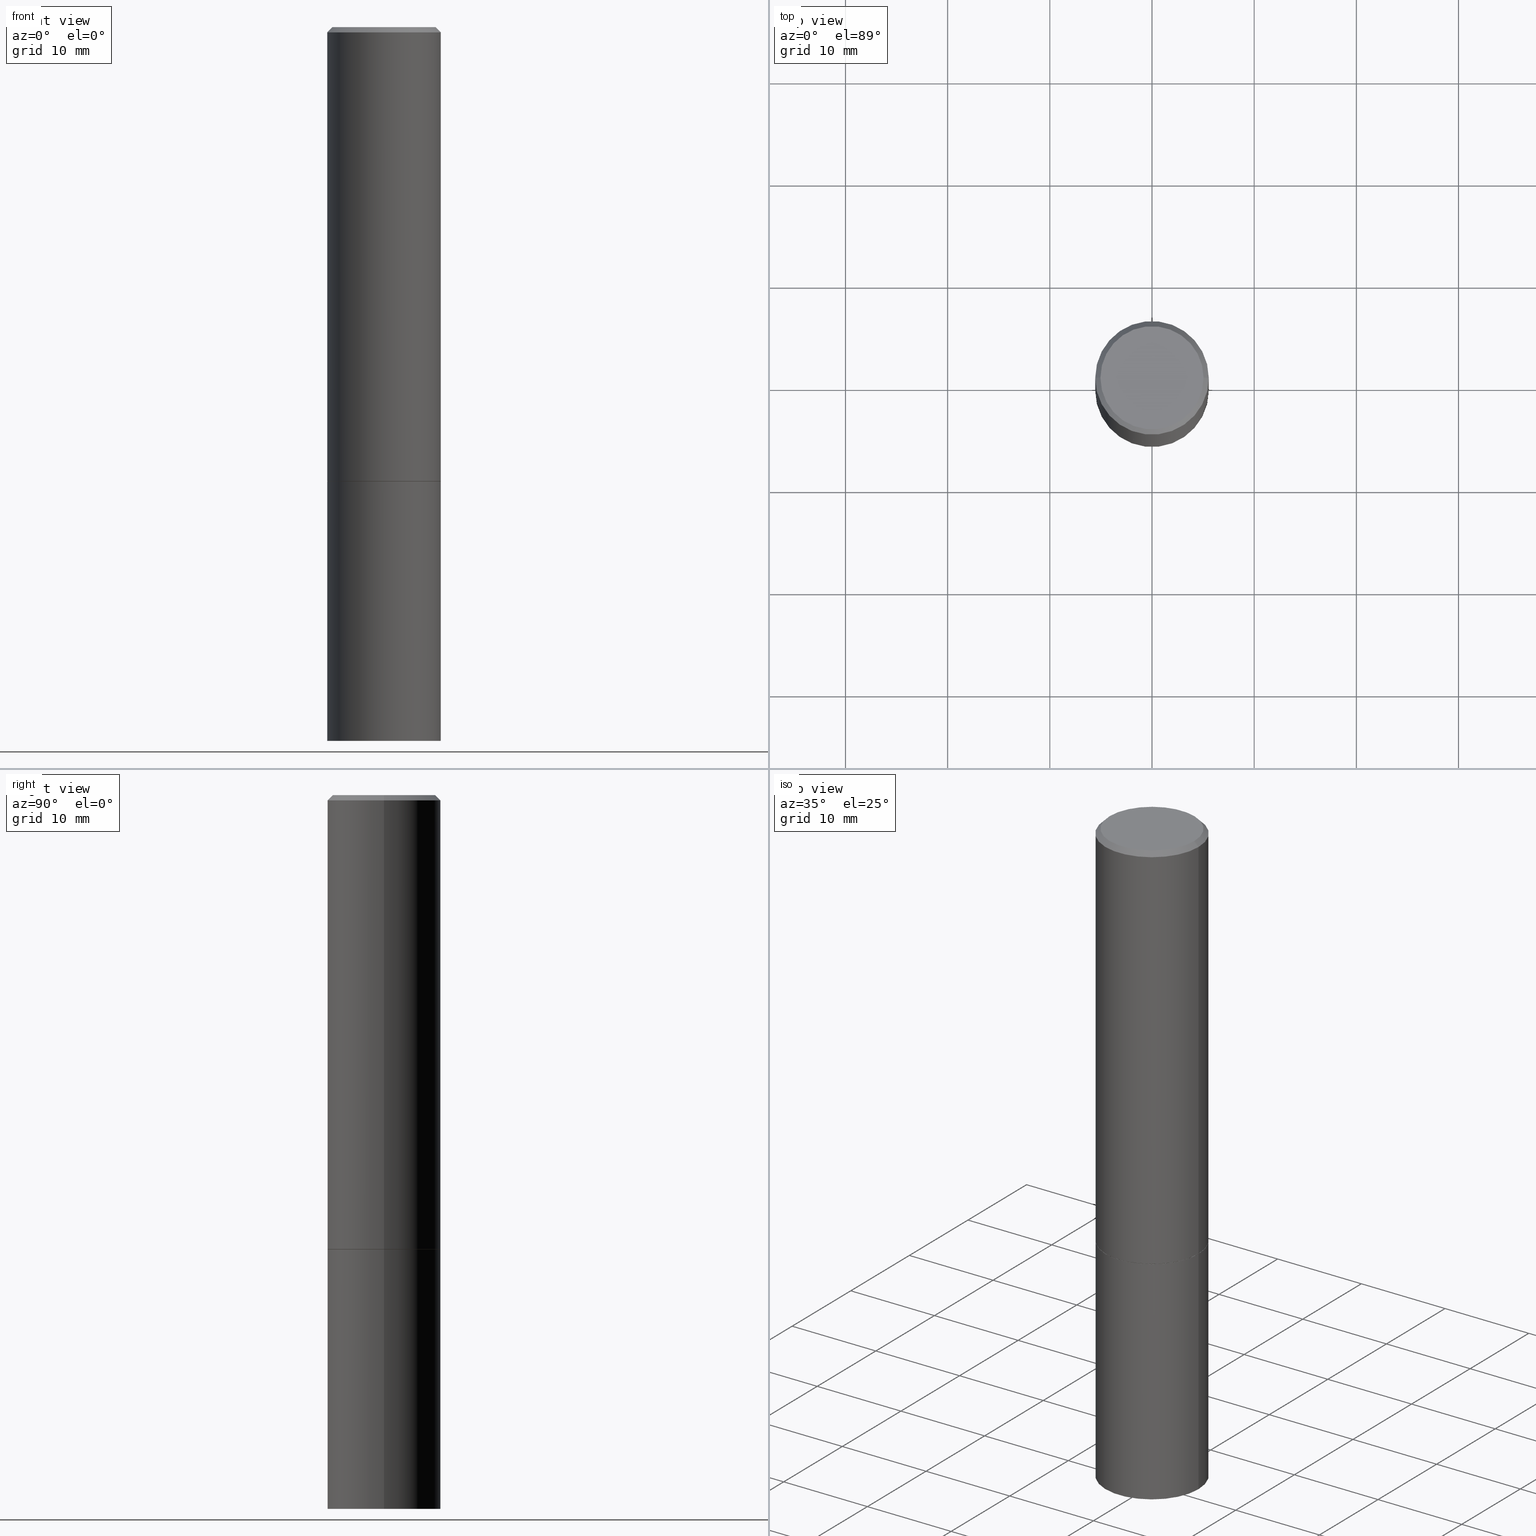
[diagram: canonical four-view strip — front | top / right | iso, engineering-drawing reading convention]
A machine part, canonical four-view strip (front | top / right | iso — engineering-drawing reading convention). The complete STEP part file that produces these views, byte-faithful:
ISO-10303-21;
HEADER;
FILE_DESCRIPTION (( 'STEP AP203' ),
    '1' );
FILE_NAME ('39755.STEP',
    '2024-02-28T01:14:26',
    ( '' ),
    ( '' ),
    'SwSTEP 2.0',
    'SolidWorks 2023',
    '' );
FILE_SCHEMA (( 'CONFIG_CONTROL_DESIGN' ));
ENDSEC;

DATA;
#1 = APPROVAL_ROLE ( '' ) ;
#2 = ORIENTED_EDGE ( 'NONE', *, *, #106, .T. ) ;
#3 = CC_DESIGN_PERSON_AND_ORGANIZATION_ASSIGNMENT ( #241, #213, ( #44 ) ) ;
#4 = AXIS2_PLACEMENT_3D ( 'NONE', #212, #124, #207 ) ;
#5 = CARTESIAN_POINT ( 'NONE',  ( 0.000000000000000000, 0.000000000000000000, 0.000000000000000000 ) ) ;
#6 = DIRECTION ( 'NONE',  ( -2.445468806185136877E-29, 3.491481338843145188E-15, 1.000000000000000000 ) ) ;
#7 = FACE_OUTER_BOUND ( 'NONE', #19, .T. ) ;
#8 = PERSON_AND_ORGANIZATION ( #190, #270 ) ;
#9 = DIRECTION ( 'NONE',  ( -1.000000000000000000, 6.982962677686265922E-15, -4.876176775795935793E-29 ) ) ;
#10 = CC_DESIGN_SECURITY_CLASSIFICATION ( #336, ( #103 ) ) ;
#11 = CC_DESIGN_PERSON_AND_ORGANIZATION_ASSIGNMENT ( #290, #144, ( #336 ) ) ;
#12 = COORDINATED_UNIVERSAL_TIME_OFFSET ( 5, 0, .BEHIND. ) ;
#13 = FACE_OUTER_BOUND ( 'NONE', #80, .T. ) ;
#14 = DIRECTION ( 'NONE',  ( 1.000000000000000000, -6.982962677686266711E-15, 4.876176775795935232E-29 ) ) ;
#15 = ADVANCED_FACE ( 'NONE', ( #7 ), #302, .T. ) ;
#16 = CIRCLE ( 'NONE', #223, 0.2177499999999999991 ) ;
#17 = CARTESIAN_POINT ( 'NONE',  ( 1.527523085743937699E-15, 0.2187499999999903966, -2.750000000000000444 ) ) ;
#18 = CARTESIAN_POINT ( 'NONE',  ( 0.1987499999999997602, -1.467043770423236875E-15, 9.982525199991772484E-30 ) ) ;
#19 = EDGE_LOOP ( 'NONE', ( #311, #169, #197, #161 ) ) ;
#20 = PRODUCT_RELATED_PRODUCT_CATEGORY ( 'detail', '', ( #267 ) ) ;
#21 = VECTOR ( 'NONE', #6, 39.37007874015748143 ) ;
#22 = ORIENTED_EDGE ( 'NONE', *, *, #170, .T. ) ;
#23 = CARTESIAN_POINT ( 'NONE',  ( 0.2177499999999999991, -7.630632466041689500E-15, -1.750000000000000222 ) ) ;
#24 = ORIENTED_EDGE ( 'NONE', *, *, #189, .F. ) ;
#25 = EDGE_CURVE ( 'NONE', #313, #309, #182, .T. ) ;
#26 = MANIFOLD_SOLID_BREP ( 'Body-Move/Copy2[1]', #331 ) ;
#27 = PLANE ( 'NONE',  #109 ) ;
#28 = ORIENTED_EDGE ( 'NONE', *, *, #158, .T. ) ;
#29 = ORIENTED_EDGE ( 'NONE', *, *, #158, .F. ) ;
#30 = AXIS2_PLACEMENT_3D ( 'NONE', #41, #250, #339 ) ;
#31 = CC_DESIGN_APPROVAL ( #278, ( #103 ) ) ;
#32 = DIRECTION ( 'NONE',  ( -1.000000000000000000, 6.982962677686266711E-15, 0.000000000000000000 ) ) ;
#33 = DATE_AND_TIME ( #66, #133 ) ;
#34 = DIRECTION ( 'NONE',  ( 1.000000000000000000, -6.982962677686267499E-15, 0.000000000000000000 ) ) ;
#35 = PRODUCT_DEFINITION_SHAPE ( 'NONE', 'NONE',  #44 ) ;
#36 = DIRECTION ( 'NONE',  ( 1.000000000000000000, -6.982962677686266711E-15, 4.876176775795935793E-29 ) ) ;
#37 = AXIS2_PLACEMENT_3D ( 'NONE', #272, #147, #34 ) ;
#38 = AXIS2_PLACEMENT_3D ( 'NONE', #61, #97, #236 ) ;
#39 = CYLINDRICAL_SURFACE ( 'NONE', #86, 0.2187499999999998890 ) ;
#40 = EDGE_CURVE ( 'NONE', #114, #313, #263, .T. ) ;
#41 = CARTESIAN_POINT ( 'NONE',  ( 1.527523085743913244E-15, 0.2187499999999938660, -1.750000000000000666 ) ) ;
#42 = DIRECTION ( 'NONE',  ( 0.7071067811865465735, -7.319954787623252890E-15, -0.7071067811865484609 ) ) ;
#43 = VECTOR ( 'NONE', #333, 39.37007874015748143 ) ;
#44 = PRODUCT_DEFINITION ( 'UNKNOWN', '', #103, #177 ) ;
#45 = CIRCLE ( 'NONE', #193, 0.2187500000000000000 ) ;
#46 = APPROVAL_PERSON_ORGANIZATION ( #268, #247, #1 ) ;
#47 = LINE ( 'NONE', #357, #209 ) ;
#48 = ORIENTED_EDGE ( 'NONE', *, *, #305, .F. ) ;
#49 = CARTESIAN_POINT ( 'NONE',  ( 0.2187500000000000000, -7.637615428719375514E-15, -1.750000000000000000 ) ) ;
#50 = EDGE_CURVE ( 'NONE', #281, #260, #159, .T. ) ;
#51 = ORIENTED_EDGE ( 'NONE', *, *, #134, .T. ) ;
#52 = FACE_OUTER_BOUND ( 'NONE', #366, .T. ) ;
#53 = ORIENTED_EDGE ( 'NONE', *, *, #314, .F. ) ;
#54 = DIRECTION ( 'NONE',  ( -2.445468806185136597E-29, 3.491481338843145583E-15, 1.000000000000000000 ) ) ;
#55 = AXIS2_PLACEMENT_3D ( 'NONE', #71, #266, #9 ) ;
#56 = VERTEX_POINT ( 'NONE', #325 ) ;
#57 =( GEOMETRIC_REPRESENTATION_CONTEXT ( 3 ) GLOBAL_UNCERTAINTY_ASSIGNED_CONTEXT ( ( #237 ) ) GLOBAL_UNIT_ASSIGNED_CONTEXT ( ( #160, #83, #348 ) ) REPRESENTATION_CONTEXT ( 'NONE', 'WORKASPACE' ) );
#58 = CC_DESIGN_DATE_AND_TIME_ASSIGNMENT ( #326, #178, ( #336 ) ) ;
#59 = CARTESIAN_POINT ( 'NONE',  ( 0.000000000000000000, 0.000000000000000000, 0.000000000000000000 ) ) ;
#60 = VERTEX_POINT ( 'NONE', #99 ) ;
#61 = CARTESIAN_POINT ( 'NONE',  ( 0.000000000000000000, 0.000000000000000000, 0.000000000000000000 ) ) ;
#62 = PERSON_AND_ORGANIZATION ( #190, #270 ) ;
#63 = FACE_OUTER_BOUND ( 'NONE', #222, .T. ) ;
#64 = AXIS2_PLACEMENT_3D ( 'NONE', #95, #327, #154 ) ;
#65 = LOCAL_TIME ( 20, 14, 26.00000000000000000, #98 ) ;
#66 = CALENDAR_DATE ( 2024, 27, 2 ) ;
#67 = CARTESIAN_POINT ( 'NONE',  ( 0.000000000000000000, 0.000000000000000000, 0.000000000000000000 ) ) ;
#68 = ADVANCED_FACE ( 'NONE', ( #175 ), #39, .T. ) ;
#69 = DIRECTION ( 'NONE',  ( -2.445468806185136597E-29, 3.491481338843145583E-15, 1.000000000000000000 ) ) ;
#70 = PERSON_AND_ORGANIZATION ( #190, #270 ) ;
#71 = CARTESIAN_POINT ( 'NONE',  ( 1.387863832190143655E-15, 0.1987499999999997602, -6.939319160950743912E-16 ) ) ;
#72 = LOCAL_TIME ( 20, 14, 26.00000000000000000, #12 ) ;
#73 = ADVANCED_FACE ( 'NONE', ( #210 ), #346, .T. ) ;
#74 = DIRECTION ( 'NONE',  ( 1.000000000000000000, -6.982962677686266711E-15, 0.000000000000000000 ) ) ;
#75 = CC_DESIGN_APPROVAL ( #297, ( #44 ) ) ;
#76 = ADVANCED_FACE ( 'NONE', ( #146 ), #230, .T. ) ;
#77 = DIRECTION ( 'NONE',  ( 0.7071067811864267805, -2.468850131080992517E-15, 0.7071067811866682540 ) ) ;
#78 = CC_DESIGN_PERSON_AND_ORGANIZATION_ASSIGNMENT ( #62, #173, ( #103 ) ) ;
#79 = AXIS2_PLACEMENT_3D ( 'NONE', #59, #251, #166 ) ;
#80 = EDGE_LOOP ( 'NONE', ( #285, #51 ) ) ;
#81 = DIRECTION ( 'NONE',  ( -0.7071067811865465735, 2.468850131082246805E-15, -0.7071067811865484609 ) ) ;
#82 = ORIENTED_EDGE ( 'NONE', *, *, #40, .T. ) ;
#83 =( NAMED_UNIT ( * ) PLANE_ANGLE_UNIT ( ) SI_UNIT ( $, .RADIAN. ) );
#84 = ORIENTED_EDGE ( 'NONE', *, *, #180, .T. ) ;
#85 = CARTESIAN_POINT ( 'NONE',  ( -0.2177499999999999991, -4.562885535857887311E-15, -1.750000000000000222 ) ) ;
#86 = AXIS2_PLACEMENT_3D ( 'NONE', #67, #234, #36 ) ;
#87 = ORIENTED_EDGE ( 'NONE', *, *, #292, .T. ) ;
#88 = LOCAL_TIME ( 20, 14, 26.00000000000000000, #206 ) ;
#89 = SHAPE_DEFINITION_REPRESENTATION ( #35, #187 ) ;
#90 = CARTESIAN_POINT ( 'NONE',  ( -0.2187500000000000000, -1.533903009731541155E-15, -1.748999999999999888 ) ) ;
#91 = APPROVAL_ROLE ( '' ) ;
#92 = ORIENTED_EDGE ( 'NONE', *, *, #170, .F. ) ;
#93 = ADVANCED_FACE ( 'NONE', ( #63 ), #350, .T. ) ;
#94 = APPROVAL_DATE_TIME ( #33, #247 ) ;
#95 = CARTESIAN_POINT ( 'NONE',  ( 0.000000000000000000, 0.000000000000000000, 0.000000000000000000 ) ) ;
#96 = DATE_TIME_ROLE ( 'creation_date' ) ;
#97 = DIRECTION ( 'NONE',  ( -2.445468806185136597E-29, 3.491481338843145583E-15, 1.000000000000000000 ) ) ;
#98 = COORDINATED_UNIVERSAL_TIME_OFFSET ( 5, 0, .BEHIND. ) ;
#99 = CARTESIAN_POINT ( 'NONE',  ( -0.2177499999999999991, -4.557587081509664120E-15, -1.750000000000000222 ) ) ;
#100 = ADVANCED_FACE ( 'NONE', ( #291 ), #289, .T. ) ;
#101 = DIRECTION ( 'NONE',  ( -2.445468806185136597E-29, 3.491481338843145583E-15, 1.000000000000000000 ) ) ;
#102 = CIRCLE ( 'NONE', #152, 0.2187499999999997502 ) ;
#103 = PRODUCT_DEFINITION_FORMATION_WITH_SPECIFIED_SOURCE ( 'ANY', '', #267, .NOT_KNOWN. ) ;
#104 = DIRECTION ( 'NONE',  ( -2.445468806185136877E-29, 3.491481338843145188E-15, 1.000000000000000000 ) ) ;
#105 = DIRECTION ( 'NONE',  ( -2.445468806185136597E-29, 3.491481338843145583E-15, 1.000000000000000000 ) ) ;
#106 = EDGE_CURVE ( 'NONE', #309, #313, #298, .T. ) ;
#107 = PLANE ( 'NONE',  #131 ) ;
#108 = EDGE_LOOP ( 'NONE', ( #172, #84, #255, #48 ) ) ;
#109 = AXIS2_PLACEMENT_3D ( 'NONE', #17, #284, #224 ) ;
#110 = LOCAL_TIME ( 20, 14, 26.00000000000000000, #150 ) ;
#111 = FACE_OUTER_BOUND ( 'NONE', #342, .T. ) ;
#112 = ORIENTED_EDGE ( 'NONE', *, *, #292, .F. ) ;
#113 = CARTESIAN_POINT ( 'NONE',  ( -0.2187500000000000000, -6.301520777921857714E-15, -2.750000000000000000 ) ) ;
#114 = VERTEX_POINT ( 'NONE', #329 ) ;
#115 = FACE_OUTER_BOUND ( 'NONE', #135, .T. ) ;
#116 = ADVANCED_FACE ( 'NONE', ( #13 ), #149, .F. ) ;
#117 = ORIENTED_EDGE ( 'NONE', *, *, #305, .T. ) ;
#118 = COORDINATED_UNIVERSAL_TIME_OFFSET ( 5, 0, .BEHIND. ) ;
#119 = AXIS2_PLACEMENT_3D ( 'NONE', #130, #179, #243 ) ;
#120 = EDGE_LOOP ( 'NONE', ( #24, #22, #82, #256 ) ) ;
#121 = APPROVAL_STATUS ( 'not_yet_approved' ) ;
#122 = CARTESIAN_POINT ( 'NONE',  ( 0.2187500000000000000, -1.527523085743870843E-15, 1.066663669705360885E-29 ) ) ;
#123 = PERSON_AND_ORGANIZATION ( #190, #270 ) ;
#124 = DIRECTION ( 'NONE',  ( -2.445468806185136597E-29, 3.491481338843145583E-15, 1.000000000000000000 ) ) ;
#125 = DIRECTION ( 'NONE',  ( 1.000000000000000000, 0.000000000000000000, 0.000000000000000000 ) ) ;
#126 = CARTESIAN_POINT ( 'NONE',  ( -0.2187499999999998890, 1.554312234475218368E-15, -1.076017050993260062E-29 ) ) ;
#127 = CLOSED_SHELL ( 'NONE', ( #76, #244, #100, #253, #68, #15, #264, #116 ) ) ;
#128 = EDGE_CURVE ( 'NONE', #143, #364, #129, .T. ) ;
#129 = LINE ( 'NONE', #126, #215 ) ;
#130 = CARTESIAN_POINT ( 'NONE',  ( 6.725039217009124520E-29, -9.601573681818649859E-15, -2.750000000000000000 ) ) ;
#131 = AXIS2_PLACEMENT_3D ( 'NONE', #228, #306, #168 ) ;
#132 = CARTESIAN_POINT ( 'NONE',  ( 0.2177499999999999991, -7.630632466041689500E-15, -1.750000000000000222 ) ) ;
#133 = LOCAL_TIME ( 20, 14, 26.00000000000000000, #118 ) ;
#134 = EDGE_CURVE ( 'NONE', #260, #281, #269, .T. ) ;
#135 = EDGE_LOOP ( 'NONE', ( #29, #139 ) ) ;
#136 = CARTESIAN_POINT ( 'NONE',  ( -0.1987499999999997602, 1.422778645578575107E-15, -9.827974342635073886E-30 ) ) ;
#137 = ORIENTED_EDGE ( 'NONE', *, *, #356, .T. ) ;
#138 = CARTESIAN_POINT ( 'NONE',  ( 0.2187500000000000000, -7.634123947380530929E-15, -1.748999999999999888 ) ) ;
#139 = ORIENTED_EDGE ( 'NONE', *, *, #286, .F. ) ;
#140 = CARTESIAN_POINT ( 'NONE',  ( 4.890937612370284544E-31, -6.982962677686307633E-17, -0.02000000000000004552 ) ) ;
#141 = ORIENTED_EDGE ( 'NONE', *, *, #343, .F. ) ;
#142 = APPROVAL_ROLE ( '' ) ;
#143 = VERTEX_POINT ( 'NONE', #90 ) ;
#144 = PERSON_AND_ORGANIZATION_ROLE ( 'classification_officer' ) ;
#145 = APPROVAL_PERSON_ORGANIZATION ( #345, #278, #91 ) ;
#146 = FACE_OUTER_BOUND ( 'NONE', #164, .T. ) ;
#147 = DIRECTION ( 'NONE',  ( -2.445468806185136597E-29, 3.491481338843145583E-15, 1.000000000000000000 ) ) ;
#148 = APPROVAL_STATUS ( 'not_yet_approved' ) ;
#149 = PLANE ( 'NONE',  #55 ) ;
#150 = COORDINATED_UNIVERSAL_TIME_OFFSET ( 5, 0, .BEHIND. ) ;
#151 = DIRECTION ( 'NONE',  ( -2.445468806185136597E-29, 3.491481338843145583E-15, 1.000000000000000000 ) ) ;
#152 = AXIS2_PLACEMENT_3D ( 'NONE', #156, #355, #74 ) ;
#153 = EDGE_CURVE ( 'NONE', #114, #296, #157, .T. ) ;
#154 = DIRECTION ( 'NONE',  ( 1.000000000000000000, -6.982962677686266711E-15, 4.876176775795935232E-29 ) ) ;
#155 = CARTESIAN_POINT ( 'NONE',  ( 6.725039217009124520E-29, -9.601573681818649859E-15, -2.750000000000000000 ) ) ;
#156 = CARTESIAN_POINT ( 'NONE',  ( 4.890937612370284544E-31, -6.982962677686307633E-17, -0.02000000000000004552 ) ) ;
#157 = CIRCLE ( 'NONE', #119, 0.2187500000000000000 ) ;
#158 = EDGE_CURVE ( 'NONE', #167, #60, #352, .T. ) ;
#159 = CIRCLE ( 'NONE', #38, 0.1987499999999997602 ) ;
#160 =( CONVERSION_BASED_UNIT ( 'INCH', #365 ) LENGTH_UNIT ( ) NAMED_UNIT ( #246 ) );
#161 = ORIENTED_EDGE ( 'NONE', *, *, #320, .F. ) ;
#162 = APPLICATION_CONTEXT ( 'configuration controlled 3d designs of mechanical parts and assemblies' ) ;
#163 = FACE_OUTER_BOUND ( 'NONE', #195, .T. ) ;
#164 = EDGE_LOOP ( 'NONE', ( #28, #192, #229, #53 ) ) ;
#165 = AXIS2_PLACEMENT_3D ( 'NONE', #262, #344, #176 ) ;
#166 = DIRECTION ( 'NONE',  ( 1.000000000000000000, -6.982962677686266711E-15, 4.876176775795935793E-29 ) ) ;
#167 = VERTEX_POINT ( 'NONE', #132 ) ;
#168 = DIRECTION ( 'NONE',  ( 1.000000000000000000, -6.982962677686265922E-15, 4.876176775795935793E-29 ) ) ;
#169 = ORIENTED_EDGE ( 'NONE', *, *, #286, .T. ) ;
#170 = EDGE_CURVE ( 'NONE', #296, #114, #45, .T. ) ;
#171 = DATE_AND_TIME ( #321, #88 ) ;
#172 = ORIENTED_EDGE ( 'NONE', *, *, #134, .F. ) ;
#173 = PERSON_AND_ORGANIZATION_ROLE ( 'creator' ) ;
#174 = AXIS2_PLACEMENT_3D ( 'NONE', #363, #280, #358 ) ;
#175 = FACE_OUTER_BOUND ( 'NONE', #335, .T. ) ;
#176 = DIRECTION ( 'NONE',  ( 1.000000000000000000, -6.982962677686266711E-15, 0.000000000000000000 ) ) ;
#177 = DESIGN_CONTEXT ( 'detailed design', #274, 'design' ) ;
#178 = DATE_TIME_ROLE ( 'classification_date' ) ;
#179 = DIRECTION ( 'NONE',  ( -2.445468806185136597E-29, 3.491481338843145583E-15, 1.000000000000000000 ) ) ;
#180 = EDGE_CURVE ( 'NONE', #260, #56, #275, .T. ) ;
#181 = SECURITY_CLASSIFICATION_LEVEL ( 'unclassified' ) ;
#182 = CIRCLE ( 'NONE', #4, 0.2187500000000000000 ) ;
#183 = DIRECTION ( 'NONE',  ( -2.445468806185136877E-29, 3.491481338843145188E-15, 1.000000000000000000 ) ) ;
#184 = LINE ( 'NONE', #303, #261 ) ;
#185 = EDGE_CURVE ( 'NONE', #56, #364, #102, .T. ) ;
#186 = DIRECTION ( 'NONE',  ( 1.000000000000000000, -6.982962677686266711E-15, 0.000000000000000000 ) ) ;
#187 = ADVANCED_BREP_SHAPE_REPRESENTATION ( '39755', ( #26, #276, #231 ), #57 ) ;
#188 = CIRCLE ( 'NONE', #217, 0.2187500000000000000 ) ;
#189 = EDGE_CURVE ( 'NONE', #296, #309, #184, .T. ) ;
#190 = PERSON ( 'UNSPECIFIED', 'UNSPECIFIED', 'UNSPECIFIED', ('UNSPECIFIED'), ('UNSPECIFIED'), ('UNSPECIFIED') ) ;
#191 =( LENGTH_UNIT ( ) NAMED_UNIT ( * ) SI_UNIT ( $, .METRE. ) );
#192 = ORIENTED_EDGE ( 'NONE', *, *, #351, .T. ) ;
#193 = AXIS2_PLACEMENT_3D ( 'NONE', #155, #101, #248 ) ;
#194 = CC_DESIGN_APPROVAL ( #247, ( #336 ) ) ;
#195 = EDGE_LOOP ( 'NONE', ( #137, #199, #338, #112 ) ) ;
#196 = CARTESIAN_POINT ( 'NONE',  ( 4.277124942017804002E-29, -6.106600861636660875E-15, -1.748999999999999888 ) ) ;
#197 = ORIENTED_EDGE ( 'NONE', *, *, #314, .T. ) ;
#198 = CARTESIAN_POINT ( 'NONE',  ( 4.277124942017804002E-29, -6.106600861636660875E-15, -1.748999999999999888 ) ) ;
#199 = ORIENTED_EDGE ( 'NONE', *, *, #128, .T. ) ;
#200 = AXIS2_PLACEMENT_3D ( 'NONE', #288, #214, #32 ) ;
#201 = AXIS2_PLACEMENT_3D ( 'NONE', #196, #105, #282 ) ;
#202 = LINE ( 'NONE', #287, #347 ) ;
#203 = ORIENTED_EDGE ( 'NONE', *, *, #180, .F. ) ;
#204 = MECHANICAL_CONTEXT ( 'NONE', #162, 'mechanical' ) ;
#205 = CARTESIAN_POINT ( 'NONE',  ( 4.279570410823989044E-29, -6.110092342975505460E-15, -1.750000000000000222 ) ) ;
#206 = COORDINATED_UNIVERSAL_TIME_OFFSET ( 5, 0, .BEHIND. ) ;
#207 = DIRECTION ( 'NONE',  ( 1.000000000000000000, -6.982962677686267499E-15, 0.000000000000000000 ) ) ;
#208 = CALENDAR_DATE ( 2024, 27, 2 ) ;
#209 = VECTOR ( 'NONE', #81, 39.37007874015748143 ) ;
#210 = FACE_OUTER_BOUND ( 'NONE', #120, .T. ) ;
#211 = DATE_AND_TIME ( #259, #72 ) ;
#212 = CARTESIAN_POINT ( 'NONE',  ( 4.279570410823988484E-29, -6.110092342975504671E-15, -1.750000000000000000 ) ) ;
#213 = PERSON_AND_ORGANIZATION_ROLE ( 'creator' ) ;
#214 = DIRECTION ( 'NONE',  ( 2.445468806185136597E-29, -3.491481338843145583E-15, -1.000000000000000000 ) ) ;
#215 = VECTOR ( 'NONE', #183, 39.37007874015748143 ) ;
#216 = CC_DESIGN_PERSON_AND_ORGANIZATION_ASSIGNMENT ( #70, #341, ( #103 ) ) ;
#217 = AXIS2_PLACEMENT_3D ( 'NONE', #198, #257, #312 ) ;
#218 = PLANE ( 'NONE',  #30 ) ;
#219 = ADVANCED_FACE ( 'NONE', ( #300 ), #218, .F. ) ;
#220 = LINE ( 'NONE', #85, #43 ) ;
#221 = DIRECTION ( 'NONE',  ( -2.445468806185136877E-29, 3.491481338843145188E-15, 1.000000000000000000 ) ) ;
#222 = EDGE_LOOP ( 'NONE', ( #307, #283, #317, #349 ) ) ;
#223 = AXIS2_PLACEMENT_3D ( 'NONE', #277, #54, #254 ) ;
#224 = DIRECTION ( 'NONE',  ( -1.000000000000000000, 6.982962677686265922E-15, -4.876176775795935793E-29 ) ) ;
#225 = ORIENTED_EDGE ( 'NONE', *, *, #25, .T. ) ;
#226 = DIRECTION ( 'NONE',  ( 1.000000000000000000, -6.982962677686266711E-15, 0.000000000000000000 ) ) ;
#227 = ORIENTED_EDGE ( 'NONE', *, *, #128, .F. ) ;
#228 = CARTESIAN_POINT ( 'NONE',  ( 4.279570410823989044E-29, -6.110092342975505460E-15, -1.750000000000000222 ) ) ;
#229 = ORIENTED_EDGE ( 'NONE', *, *, #356, .F. ) ;
#230 = CONICAL_SURFACE ( 'NONE', #165, 0.2177499999999999991, 0.7853981633972775267 ) ;
#231 = AXIS2_PLACEMENT_3D ( 'NONE', #5, #324, #125 ) ;
#232 = APPLICATION_PROTOCOL_DEFINITION ( 'international standard', 'config_control_design', 1994, #162 ) ;
#233 = ORIENTED_EDGE ( 'NONE', *, *, #50, .F. ) ;
#234 = DIRECTION ( 'NONE',  ( -2.445468806185136597E-29, 3.491481338843145583E-15, 1.000000000000000000 ) ) ;
#235 = CALENDAR_DATE ( 2024, 27, 2 ) ;
#236 = DIRECTION ( 'NONE',  ( 1.000000000000000000, -6.982962677686266711E-15, 4.876176775795935232E-29 ) ) ;
#237 = UNCERTAINTY_MEASURE_WITH_UNIT (LENGTH_MEASURE( 1.000000000000000082E-05 ), #160, 'distance_accuracy_value', 'NONE');
#238 = PERSON_AND_ORGANIZATION_ROLE ( 'design_owner' ) ;
#239 = AXIS2_PLACEMENT_3D ( 'NONE', #242, #151, #299 ) ;
#240 = CARTESIAN_POINT ( 'NONE',  ( 0.000000000000000000, 0.000000000000000000, 0.000000000000000000 ) ) ;
#241 = PERSON_AND_ORGANIZATION ( #190, #270 ) ;
#242 = CARTESIAN_POINT ( 'NONE',  ( 4.279570410823989044E-29, -6.110092342975505460E-15, -1.750000000000000222 ) ) ;
#243 = DIRECTION ( 'NONE',  ( 1.000000000000000000, -6.982962677686262766E-15, 0.000000000000000000 ) ) ;
#244 = ADVANCED_FACE ( 'NONE', ( #163 ), #308, .T. ) ;
#245 = APPROVAL_PERSON_ORGANIZATION ( #8, #297, #142 ) ;
#246 = DIMENSIONAL_EXPONENTS ( 1.000000000000000000, 0.000000000000000000, 0.000000000000000000, 0.000000000000000000, 0.000000000000000000, 0.000000000000000000, 0.000000000000000000 ) ;
#247 = APPROVAL ( #121, 'UNSPECIFIED' ) ;
#248 = DIRECTION ( 'NONE',  ( 1.000000000000000000, -6.982962677686262766E-15, 0.000000000000000000 ) ) ;
#249 = VECTOR ( 'NONE', #42, 39.37007874015748143 ) ;
#250 = DIRECTION ( 'NONE',  ( 2.438088387897960049E-29, -3.491481338843145188E-15, -1.000000000000000000 ) ) ;
#251 = DIRECTION ( 'NONE',  ( -2.445468806185136597E-29, 3.491481338843145583E-15, 1.000000000000000000 ) ) ;
#252 = ORIENTED_EDGE ( 'NONE', *, *, #153, .F. ) ;
#253 = ADVANCED_FACE ( 'NONE', ( #52 ), #334, .T. ) ;
#254 = DIRECTION ( 'NONE',  ( 1.000000000000000000, -6.982962677686266711E-15, 0.000000000000000000 ) ) ;
#255 = ORIENTED_EDGE ( 'NONE', *, *, #185, .T. ) ;
#256 = ORIENTED_EDGE ( 'NONE', *, *, #106, .F. ) ;
#257 = DIRECTION ( 'NONE',  ( -2.445468806185136597E-29, 3.491481338843145583E-15, 1.000000000000000000 ) ) ;
#258 = VERTEX_POINT ( 'NONE', #138 ) ;
#259 = CALENDAR_DATE ( 2024, 27, 2 ) ;
#260 = VERTEX_POINT ( 'NONE', #18 ) ;
#261 = VECTOR ( 'NONE', #104, 39.37007874015748143 ) ;
#262 = CARTESIAN_POINT ( 'NONE',  ( 4.279570410823989044E-29, -6.110092342975505460E-15, -1.750000000000000222 ) ) ;
#263 = LINE ( 'NONE', #122, #21 ) ;
#264 = ADVANCED_FACE ( 'NONE', ( #115 ), #107, .F. ) ;
#265 = APPLICATION_PROTOCOL_DEFINITION ( 'international standard', 'config_control_design', 1994, #274 ) ;
#266 = DIRECTION ( 'NONE',  ( 2.438088387897960049E-29, -3.491481338843145188E-15, -1.000000000000000000 ) ) ;
#267 = PRODUCT ( '39755', '39755', '', ( #204 ) ) ;
#268 = PERSON_AND_ORGANIZATION ( #190, #270 ) ;
#269 = CIRCLE ( 'NONE', #315, 0.1987499999999997602 ) ;
#270 = ORGANIZATION ( 'UNSPECIFIED', 'UNSPECIFIED', '' ) ;
#271 = CARTESIAN_POINT ( 'NONE',  ( 0.000000000000000000, 0.000000000000000000, 0.000000000000000000 ) ) ;
#272 = CARTESIAN_POINT ( 'NONE',  ( 4.279570410823988484E-29, -6.110092342975504671E-15, -1.750000000000000000 ) ) ;
#273 = VECTOR ( 'NONE', #77, 39.37007874015748143 ) ;
#274 = APPLICATION_CONTEXT ( 'configuration controlled 3d designs of mechanical parts and assemblies' ) ;
#275 = LINE ( 'NONE', #301, #249 ) ;
#276 = MANIFOLD_SOLID_BREP ( 'Body-Move/Copy2[2]', #127 ) ;
#277 = CARTESIAN_POINT ( 'NONE',  ( 4.279570410823989044E-29, -6.110092342975505460E-15, -1.750000000000000222 ) ) ;
#278 = APPROVAL ( #318, 'UNSPECIFIED' ) ;
#279 = EDGE_LOOP ( 'NONE', ( #225, #2 ) ) ;
#280 = DIRECTION ( 'NONE',  ( 2.445468806185136597E-29, -3.491481338843145583E-15, -1.000000000000000000 ) ) ;
#281 = VERTEX_POINT ( 'NONE', #136 ) ;
#282 = DIRECTION ( 'NONE',  ( 1.000000000000000000, -6.982962677686267499E-15, 0.000000000000000000 ) ) ;
#283 = ORIENTED_EDGE ( 'NONE', *, *, #189, .T. ) ;
#284 = DIRECTION ( 'NONE',  ( 2.438088387897960049E-29, -3.491481338843145188E-15, -1.000000000000000000 ) ) ;
#285 = ORIENTED_EDGE ( 'NONE', *, *, #50, .T. ) ;
#286 = EDGE_CURVE ( 'NONE', #60, #167, #16, .T. ) ;
#287 = CARTESIAN_POINT ( 'NONE',  ( 0.2187499999999998890, -1.527523085743870054E-15, 1.066663669705360464E-29 ) ) ;
#288 = CARTESIAN_POINT ( 'NONE',  ( 4.890937612370284544E-31, -6.982962677686307633E-17, -0.02000000000000004552 ) ) ;
#289 = CONICAL_SURFACE ( 'NONE', #200, 0.2187499999999997502, 0.7853981633974469467 ) ;
#290 = PERSON_AND_ORGANIZATION ( #190, #270 ) ;
#291 = FACE_OUTER_BOUND ( 'NONE', #108, .T. ) ;
#292 = EDGE_CURVE ( 'NONE', #258, #56, #202, .T. ) ;
#293 = APPROVAL_DATE_TIME ( #171, #297 ) ;
#294 = DIRECTION ( 'NONE',  ( -2.445468806185136597E-29, 3.491481338843145583E-15, 1.000000000000000000 ) ) ;
#295 = DATE_AND_TIME ( #208, #65 ) ;
#296 = VERTEX_POINT ( 'NONE', #113 ) ;
#297 = APPROVAL ( #148, 'UNSPECIFIED' ) ;
#298 = CIRCLE ( 'NONE', #37, 0.2187500000000000000 ) ;
#299 = DIRECTION ( 'NONE',  ( 1.000000000000000000, -6.982962677686266711E-15, 0.000000000000000000 ) ) ;
#300 = FACE_OUTER_BOUND ( 'NONE', #279, .T. ) ;
#301 = CARTESIAN_POINT ( 'NONE',  ( 0.2187499999999997502, -1.570563563789383855E-15, -0.02000000000000004552 ) ) ;
#302 = CONICAL_SURFACE ( 'NONE', #239, 0.2177499999999999991, 0.7853981633972775267 ) ;
#303 = CARTESIAN_POINT ( 'NONE',  ( -0.2187500000000000000, 1.554312234475219157E-15, -1.076017050993260622E-29 ) ) ;
#304 = CC_DESIGN_PERSON_AND_ORGANIZATION_ASSIGNMENT ( #123, #238, ( #267 ) ) ;
#305 = EDGE_CURVE ( 'NONE', #281, #364, #47, .T. ) ;
#306 = DIRECTION ( 'NONE',  ( -2.438088387897960049E-29, 3.491481338843145188E-15, 1.000000000000000000 ) ) ;
#307 = ORIENTED_EDGE ( 'NONE', *, *, #153, .T. ) ;
#308 = CYLINDRICAL_SURFACE ( 'NONE', #79, 0.2187499999999998890 ) ;
#309 = VERTEX_POINT ( 'NONE', #316 ) ;
#310 = CARTESIAN_POINT ( 'NONE',  ( -0.2187499999999997502, 1.457693458967005967E-15, -0.02000000000000004552 ) ) ;
#311 = ORIENTED_EDGE ( 'NONE', *, *, #351, .F. ) ;
#312 = DIRECTION ( 'NONE',  ( 1.000000000000000000, -6.982962677686267499E-15, 0.000000000000000000 ) ) ;
#313 = VERTEX_POINT ( 'NONE', #49 ) ;
#314 = EDGE_CURVE ( 'NONE', #167, #258, #360, .T. ) ;
#315 = AXIS2_PLACEMENT_3D ( 'NONE', #240, #69, #14 ) ;
#316 = CARTESIAN_POINT ( 'NONE',  ( -0.2187500000000000000, -6.301520777921857714E-15, -1.750000000000000000 ) ) ;
#317 = ORIENTED_EDGE ( 'NONE', *, *, #25, .F. ) ;
#318 = APPROVAL_STATUS ( 'not_yet_approved' ) ;
#319 = DIRECTION ( 'NONE',  ( -2.445468806185136597E-29, 3.491481338843145583E-15, 1.000000000000000000 ) ) ;
#320 = EDGE_CURVE ( 'NONE', #143, #258, #354, .T. ) ;
#321 = CALENDAR_DATE ( 2024, 27, 2 ) ;
#322 = DIRECTION ( 'NONE',  ( 1.000000000000000000, -6.982962677686266711E-15, 4.876176775795935232E-29 ) ) ;
#323 = CIRCLE ( 'NONE', #361, 0.2187499999999997502 ) ;
#324 = DIRECTION ( 'NONE',  ( 0.000000000000000000, 0.000000000000000000, 1.000000000000000000 ) ) ;
#325 = CARTESIAN_POINT ( 'NONE',  ( 0.2187499999999997502, -1.570563563789383855E-15, -0.02000000000000004552 ) ) ;
#326 = DATE_AND_TIME ( #235, #110 ) ;
#327 = DIRECTION ( 'NONE',  ( -2.445468806185136597E-29, 3.491481338843145583E-15, 1.000000000000000000 ) ) ;
#328 = APPROVAL_DATE_TIME ( #295, #278 ) ;
#329 = CARTESIAN_POINT ( 'NONE',  ( 0.2187500000000000000, -1.112909676756251991E-14, -2.750000000000000000 ) ) ;
#330 = AXIS2_PLACEMENT_3D ( 'NONE', #205, #319, #186 ) ;
#331 = CLOSED_SHELL ( 'NONE', ( #93, #332, #219, #73 ) ) ;
#332 = ADVANCED_FACE ( 'NONE', ( #111 ), #27, .T. ) ;
#333 = DIRECTION ( 'NONE',  ( -0.7071067811864267805, 7.493145998869918709E-15, 0.7071067811866682540 ) ) ;
#334 = CONICAL_SURFACE ( 'NONE', #174, 0.2187499999999997502, 0.7853981633974469467 ) ;
#335 = EDGE_LOOP ( 'NONE', ( #227, #359, #87, #141 ) ) ;
#336 = SECURITY_CLASSIFICATION ( '', '', #181 ) ;
#337 = DIRECTION ( 'NONE',  ( -2.445468806185136597E-29, 3.491481338843145583E-15, 1.000000000000000000 ) ) ;
#338 = ORIENTED_EDGE ( 'NONE', *, *, #185, .F. ) ;
#339 = DIRECTION ( 'NONE',  ( -1.000000000000000000, 6.982962677686265922E-15, -4.876176775795935793E-29 ) ) ;
#340 = AXIS2_PLACEMENT_3D ( 'NONE', #271, #294, #322 ) ;
#341 = PERSON_AND_ORGANIZATION_ROLE ( 'design_supplier' ) ;
#342 = EDGE_LOOP ( 'NONE', ( #252, #92 ) ) ;
#343 = EDGE_CURVE ( 'NONE', #364, #56, #323, .T. ) ;
#344 = DIRECTION ( 'NONE',  ( -2.445468806185136597E-29, 3.491481338843145583E-15, 1.000000000000000000 ) ) ;
#345 = PERSON_AND_ORGANIZATION ( #190, #270 ) ;
#346 = CYLINDRICAL_SURFACE ( 'NONE', #340, 0.2187500000000000000 ) ;
#347 = VECTOR ( 'NONE', #221, 39.37007874015748143 ) ;
#348 =( NAMED_UNIT ( * ) SI_UNIT ( $, .STERADIAN. ) SOLID_ANGLE_UNIT ( ) );
#349 = ORIENTED_EDGE ( 'NONE', *, *, #40, .F. ) ;
#350 = CYLINDRICAL_SURFACE ( 'NONE', #64, 0.2187500000000000000 ) ;
#351 = EDGE_CURVE ( 'NONE', #60, #143, #220, .T. ) ;
#352 = CIRCLE ( 'NONE', #330, 0.2177499999999999991 ) ;
#353 = CC_DESIGN_DATE_AND_TIME_ASSIGNMENT ( #211, #96, ( #44 ) ) ;
#354 = CIRCLE ( 'NONE', #201, 0.2187500000000000000 ) ;
#355 = DIRECTION ( 'NONE',  ( -2.445468806185136597E-29, 3.491481338843145583E-15, 1.000000000000000000 ) ) ;
#356 = EDGE_CURVE ( 'NONE', #258, #143, #188, .T. ) ;
#357 = CARTESIAN_POINT ( 'NONE',  ( -0.2187499999999997502, 1.457693458967005967E-15, -0.02000000000000004552 ) ) ;
#358 = DIRECTION ( 'NONE',  ( -1.000000000000000000, 6.982962677686266711E-15, 0.000000000000000000 ) ) ;
#359 = ORIENTED_EDGE ( 'NONE', *, *, #320, .T. ) ;
#360 = LINE ( 'NONE', #23, #273 ) ;
#361 = AXIS2_PLACEMENT_3D ( 'NONE', #140, #337, #226 ) ;
#362 = ORIENTED_EDGE ( 'NONE', *, *, #343, .T. ) ;
#363 = CARTESIAN_POINT ( 'NONE',  ( 4.890937612370284544E-31, -6.982962677686307633E-17, -0.02000000000000004552 ) ) ;
#364 = VERTEX_POINT ( 'NONE', #310 ) ;
#365 = LENGTH_MEASURE_WITH_UNIT ( LENGTH_MEASURE( 0.02539999999999999897 ), #191 );
#366 = EDGE_LOOP ( 'NONE', ( #203, #233, #117, #362 ) ) ;
ENDSEC;
END-ISO-10303-21;
